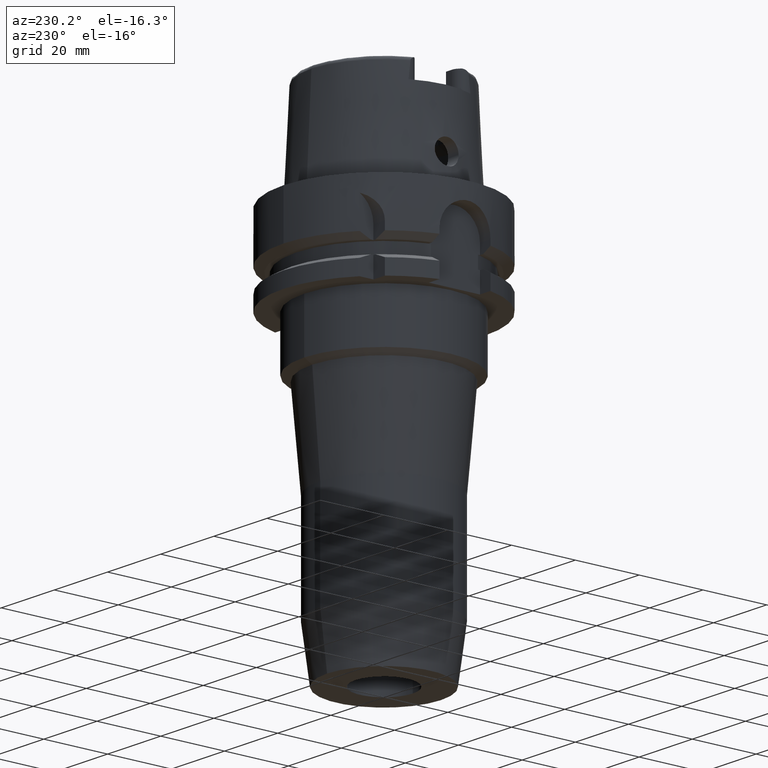
[diagram: clean part render]
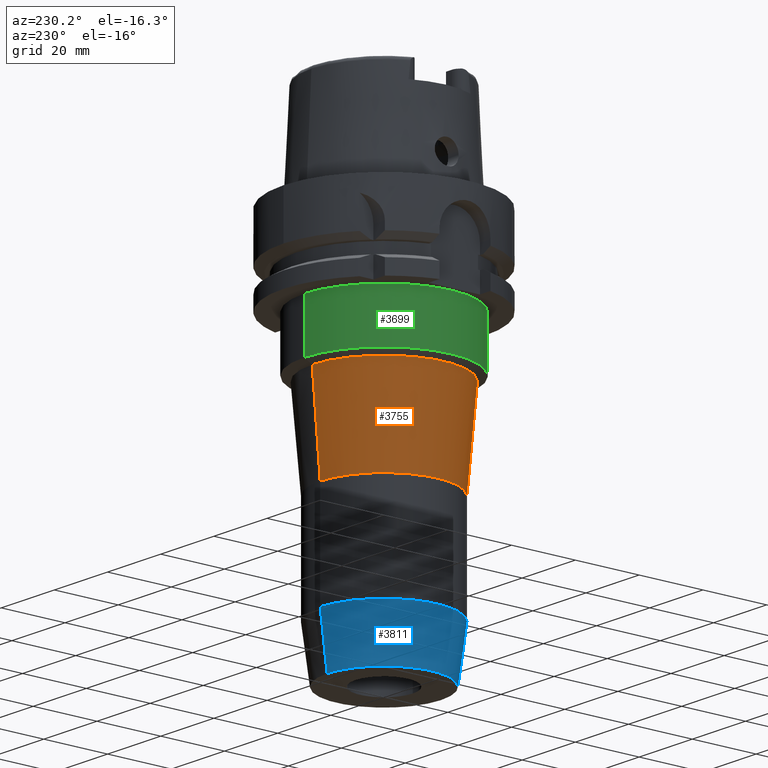
[diagram: same view with three faces highlighted in distinct colors, each labeled with its STEP entity id]
A machine part, auxiliary view with three faces highlighted in distinct colors.
Their STEP definitions:

[orange] entity #3755 — the highlighted conical surface has half-angle 4.985 deg.
#1657=CARTESIAN_POINT('',(0.E0,0.E0,-4.334927756892E1));
#1658=DIRECTION('',(0.E0,0.E0,-1.E0));
#1659=DIRECTION('',(0.E0,-1.E0,0.E0));
#1660=AXIS2_PLACEMENT_3D('',#1657,#1658,#1659);
#1665=DIRECTION('',(0.E0,8.689493660176E-2,-9.962174812725E-1));
#1666=VECTOR('',#1665,2.884683612897E1);
#1667=CARTESIAN_POINT('',(0.E0,-2.250664399659E1,-4.334927756892E1));
#1668=LINE('',#1667,#1666);
#1672=CARTESIAN_POINT('',(0.E0,0.E0,-7.2087E1));
#1673=DIRECTION('',(0.E0,0.E0,-1.E0));
#1674=DIRECTION('',(0.E0,-1.E0,0.E0));
#1675=AXIS2_PLACEMENT_3D('',#1672,#1673,#1674);
#1680=DIRECTION('',(0.E0,-8.689493660176E-2,-9.962174812725E-1));
#1681=VECTOR('',#1680,2.884683612897E1);
#1682=CARTESIAN_POINT('',(0.E0,2.250664399659E1,-4.334927756892E1));
#1683=LINE('',#1682,#1681);
#2472=CARTESIAN_POINT('',(0.E0,2.E1,-7.2087E1));
#2473=VERTEX_POINT('',#2472);
#2474=CARTESIAN_POINT('',(0.E0,-2.E1,-7.2087E1));
#2475=VERTEX_POINT('',#2474);
#2476=CARTESIAN_POINT('',(0.E0,2.250664399659E1,-4.334927756892E1));
#2477=VERTEX_POINT('',#2476);
#2478=CARTESIAN_POINT('',(0.E0,-2.250664399659E1,-4.334927756892E1));
#2479=VERTEX_POINT('',#2478);
#3741=CARTESIAN_POINT('',(0.E0,0.E0,-5.771813878446E1));
#3742=DIRECTION('',(0.E0,0.E0,1.E0));
#3743=DIRECTION('',(0.E0,1.E0,0.E0));
#3744=AXIS2_PLACEMENT_3D('',#3741,#3742,#3743);
#3745=CONICAL_SURFACE('',#3744,2.125332199829E1,4.985E0);
#3747=ORIENTED_EDGE('',*,*,#3746,.F.);
#3748=ORIENTED_EDGE('',*,*,#3736,.F.);
#3750=ORIENTED_EDGE('',*,*,#3749,.T.);
#3752=ORIENTED_EDGE('',*,*,#3751,.T.);
#3753=EDGE_LOOP('',(#3747,#3748,#3750,#3752));
#3754=FACE_OUTER_BOUND('',#3753,.F.);
#1661=CIRCLE('',#1660,2.250664399659E1);
#1676=CIRCLE('',#1675,2.E1);
#3736=EDGE_CURVE('',#2479,#2477,#1661,.T.);
#3746=EDGE_CURVE('',#2477,#2473,#1683,.T.);
#3749=EDGE_CURVE('',#2479,#2475,#1668,.T.);
#3751=EDGE_CURVE('',#2475,#2473,#1676,.T.);
#3755=ADVANCED_FACE('',(#3754),#3745,.T.);

[blue] entity #3811 — the highlighted conical surface has half-angle 7.5 deg.
#1717=CARTESIAN_POINT('',(0.E0,0.E0,-1.036463413953E2));
#1718=DIRECTION('',(0.E0,0.E0,1.E0));
#1719=DIRECTION('',(0.E0,1.E0,0.E0));
#1720=AXIS2_PLACEMENT_3D('',#1717,#1718,#1719);
#1725=DIRECTION('',(0.E0,1.305261922200E-1,-9.914448613738E-1));
#1726=VECTOR('',#1725,1.649477368014E1);
#1727=CARTESIAN_POINT('',(0.E0,-2.E1,-1.036463413953E2));
#1728=LINE('',#1727,#1726);
#1732=DIRECTION('',(0.E0,-1.305261922200E-1,-9.914448613738E-1));
#1733=VECTOR('',#1732,1.649477368014E1);
#1734=CARTESIAN_POINT('',(0.E0,2.E1,-1.036463413953E2));
#1735=LINE('',#1734,#1733);
#1755=CARTESIAN_POINT('',(0.E0,0.E0,-1.2E2));
#1756=DIRECTION('',(0.E0,0.E0,1.E0));
#1757=DIRECTION('',(0.E0,1.E0,0.E0));
#1758=AXIS2_PLACEMENT_3D('',#1755,#1756,#1757);
#2464=CARTESIAN_POINT('',(0.E0,-1.784700000001E1,-1.2E2));
#2465=CARTESIAN_POINT('',(0.E0,1.784700000001E1,-1.2E2));
#2466=VERTEX_POINT('',#2464);
#2467=VERTEX_POINT('',#2465);
#2468=CARTESIAN_POINT('',(0.E0,2.E1,-1.036463413953E2));
#2469=VERTEX_POINT('',#2468);
#2470=CARTESIAN_POINT('',(0.E0,-2.E1,-1.036463413953E2));
#2471=VERTEX_POINT('',#2470);
#3797=CARTESIAN_POINT('',(0.E0,0.E0,-1.118231706977E2));
#3798=DIRECTION('',(0.E0,0.E0,1.E0));
#3799=DIRECTION('',(0.E0,1.E0,0.E0));
#3800=AXIS2_PLACEMENT_3D('',#3797,#3798,#3799);
#3801=CONICAL_SURFACE('',#3800,1.892350000001E1,7.5E0);
#3803=ORIENTED_EDGE('',*,*,#3802,.F.);
#3804=ORIENTED_EDGE('',*,*,#3792,.T.);
#3806=ORIENTED_EDGE('',*,*,#3805,.T.);
#3808=ORIENTED_EDGE('',*,*,#3807,.F.);
#3809=EDGE_LOOP('',(#3803,#3804,#3806,#3808));
#3810=FACE_OUTER_BOUND('',#3809,.F.);
#1721=CIRCLE('',#1720,2.000000000001E1);
#1759=CIRCLE('',#1758,1.784700000001E1);
#3792=EDGE_CURVE('',#2469,#2471,#1721,.T.);
#3802=EDGE_CURVE('',#2469,#2467,#1735,.T.);
#3805=EDGE_CURVE('',#2471,#2466,#1728,.T.);
#3807=EDGE_CURVE('',#2467,#2466,#1759,.T.);
#3811=ADVANCED_FACE('',(#3810),#3801,.T.);

[green] entity #3699 — the highlighted cylindrical surface (partial cylindrical patch) has radius 25 mm, axis along (0, 0, 1).
#1038=CARTESIAN_POINT('',(0.E0,0.E0,-2.6E1));
#1039=DIRECTION('',(0.E0,0.E0,-1.E0));
#1040=DIRECTION('',(0.E0,-1.E0,0.E0));
#1041=AXIS2_PLACEMENT_3D('',#1038,#1039,#1040);
#1613=DIRECTION('',(0.E0,1.398881011028E-14,-1.E0));
#1614=VECTOR('',#1613,1.6E1);
#1615=CARTESIAN_POINT('',(0.E0,-2.5E1,-2.6E1));
#1616=LINE('',#1615,#1614);
#1620=DIRECTION('',(0.E0,-1.398881011028E-14,-1.E0));
#1621=VECTOR('',#1620,1.6E1);
#1622=CARTESIAN_POINT('',(0.E0,2.5E1,-2.6E1));
#1623=LINE('',#1622,#1621);
#1642=CARTESIAN_POINT('',(0.E0,0.E0,-4.2E1));
#1643=DIRECTION('',(0.E0,0.E0,1.E0));
#1644=DIRECTION('',(0.E0,1.E0,0.E0));
#1645=AXIS2_PLACEMENT_3D('',#1642,#1643,#1644);
#2480=CARTESIAN_POINT('',(0.E0,2.5E1,-4.2E1));
#2481=VERTEX_POINT('',#2480);
#2482=CARTESIAN_POINT('',(0.E0,-2.5E1,-4.2E1));
#2483=VERTEX_POINT('',#2482);
#2484=CARTESIAN_POINT('',(0.E0,2.5E1,-2.6E1));
#2485=VERTEX_POINT('',#2484);
#2486=CARTESIAN_POINT('',(0.E0,-2.5E1,-2.6E1));
#2487=VERTEX_POINT('',#2486);
#3685=CARTESIAN_POINT('',(0.E0,0.E0,-1.276E2));
#3686=DIRECTION('',(0.E0,0.E0,1.E0));
#3687=DIRECTION('',(0.E0,1.E0,0.E0));
#3688=AXIS2_PLACEMENT_3D('',#3685,#3686,#3687);
#3689=CYLINDRICAL_SURFACE('',#3688,2.5E1);
#3691=ORIENTED_EDGE('',*,*,#3690,.F.);
#3692=ORIENTED_EDGE('',*,*,#3270,.F.);
#3694=ORIENTED_EDGE('',*,*,#3693,.T.);
#3696=ORIENTED_EDGE('',*,*,#3695,.F.);
#3697=EDGE_LOOP('',(#3691,#3692,#3694,#3696));
#3698=FACE_OUTER_BOUND('',#3697,.F.);
#1042=CIRCLE('',#1041,2.5E1);
#1646=CIRCLE('',#1645,2.5E1);
#3270=EDGE_CURVE('',#2487,#2485,#1042,.T.);
#3690=EDGE_CURVE('',#2485,#2481,#1623,.T.);
#3693=EDGE_CURVE('',#2487,#2483,#1616,.T.);
#3695=EDGE_CURVE('',#2481,#2483,#1646,.T.);
#3699=ADVANCED_FACE('',(#3698),#3689,.T.);